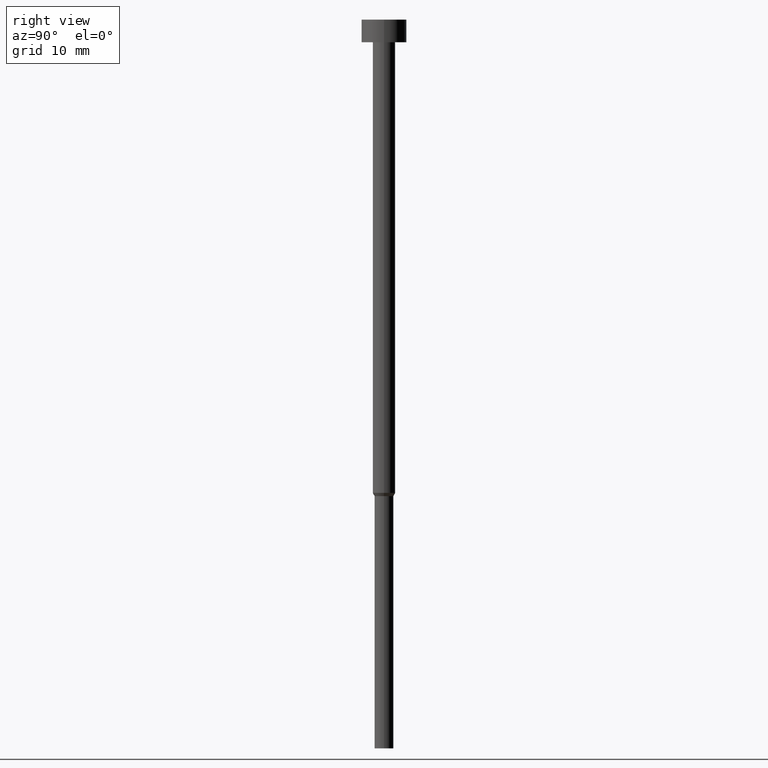
[diagram: clean part render]
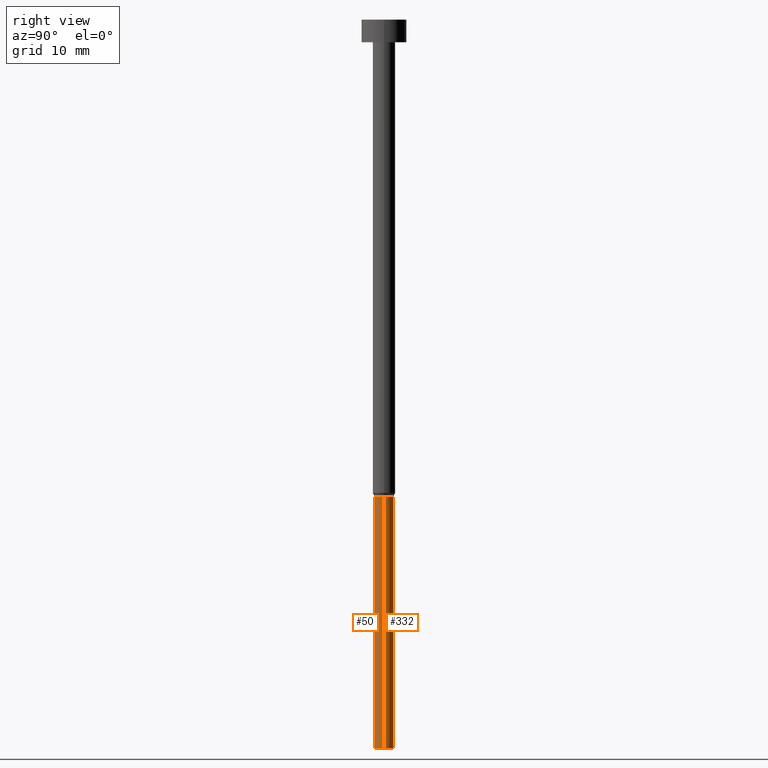
[diagram: same view with one multi-face feature highlighted, each face labeled with its STEP entity id]
A machine part, right view. The highlighted faces form ONE feature: a constant-radius fillet chain: 2 tangent blend faces with common blend radius 1.25 mm. The faces share edges in the B-rep.
Their STEP definitions:
[1] entity #50 (Cylinder):
#1 = CARTESIAN_POINT ( 'NONE',  ( 0.000000000000000000, 0.000000000000000000, -63.43301270189222407 ) ) ;
#12 = AXIS2_PLACEMENT_3D ( 'NONE', #165, #223, #199 ) ;
#20 = DIRECTION ( 'NONE',  ( -0.000000000000000000, -0.000000000000000000, 1.000000000000000000 ) ) ;
#24 = DIRECTION ( 'NONE',  ( -0.000000000000000000, -0.000000000000000000, 1.000000000000000000 ) ) ;
#32 = ORIENTED_EDGE ( 'NONE', *, *, #235, .T. ) ;
#36 = ORIENTED_EDGE ( 'NONE', *, *, #184, .F. ) ;
#39 = CARTESIAN_POINT ( 'NONE',  ( -1.250000000000000000, 1.530808498934191571E-16, -97.00000000000000000 ) ) ;
#47 = CARTESIAN_POINT ( 'NONE',  ( 0.000000000000000000, 0.000000000000000000, -97.00000000000000000 ) ) ;
#50 = ADVANCED_FACE ( 'NONE', ( #109 ), #352, .T. ) ;
#55 = CARTESIAN_POINT ( 'NONE',  ( 1.250000000000000000, 0.000000000000000000, 0.000000000000000000 ) ) ;
#60 = VERTEX_POINT ( 'NONE', #327 ) ;
#71 = VERTEX_POINT ( 'NONE', #279 ) ;
#88 = ORIENTED_EDGE ( 'NONE', *, *, #159, .F. ) ;
#97 = EDGE_LOOP ( 'NONE', ( #36, #124, #32, #88 ) ) ;
#101 = CARTESIAN_POINT ( 'NONE',  ( -1.250000000000000000, 1.530808498934191571E-16, 0.000000000000000000 ) ) ;
#105 = LINE ( 'NONE', #55, #182 ) ;
#109 = FACE_OUTER_BOUND ( 'NONE', #97, .T. ) ;
#114 = DIRECTION ( 'NONE',  ( -0.000000000000000000, -0.000000000000000000, 1.000000000000000000 ) ) ;
#119 = EDGE_CURVE ( 'NONE', #202, #71, #232, .T. ) ;
#124 = ORIENTED_EDGE ( 'NONE', *, *, #119, .T. ) ;
#159 = EDGE_CURVE ( 'NONE', #60, #335, #350, .T. ) ;
#165 = CARTESIAN_POINT ( 'NONE',  ( 0.000000000000000000, 0.000000000000000000, 0.000000000000000000 ) ) ;
#169 = DIRECTION ( 'NONE',  ( 1.000000000000000000, 0.000000000000000000, 0.000000000000000000 ) ) ;
#182 = VECTOR ( 'NONE', #24, 1000.000000000000000 ) ;
#184 = EDGE_CURVE ( 'NONE', #202, #60, #349, .T. ) ;
#199 = DIRECTION ( 'NONE',  ( 1.000000000000000000, 0.000000000000000000, 0.000000000000000000 ) ) ;
#201 = VECTOR ( 'NONE', #300, 1000.000000000000000 ) ;
#202 = VERTEX_POINT ( 'NONE', #39 ) ;
#223 = DIRECTION ( 'NONE',  ( -0.000000000000000000, -0.000000000000000000, 1.000000000000000000 ) ) ;
#227 = DIRECTION ( 'NONE',  ( 1.000000000000000000, 0.000000000000000000, 0.000000000000000000 ) ) ;
#232 = CIRCLE ( 'NONE', #338, 1.250000000000000000 ) ;
#235 = EDGE_CURVE ( 'NONE', #71, #335, #105, .T. ) ;
#247 = AXIS2_PLACEMENT_3D ( 'NONE', #1, #114, #227 ) ;
#279 = CARTESIAN_POINT ( 'NONE',  ( 1.250000000000000000, 0.000000000000000000, -97.00000000000000000 ) ) ;
#291 = CARTESIAN_POINT ( 'NONE',  ( 1.250000000000000000, 0.000000000000000000, -63.43301270189222407 ) ) ;
#300 = DIRECTION ( 'NONE',  ( -0.000000000000000000, -0.000000000000000000, 1.000000000000000000 ) ) ;
#327 = CARTESIAN_POINT ( 'NONE',  ( -1.250000000000000000, 1.530808498934191571E-16, -63.43301270189222407 ) ) ;
#335 = VERTEX_POINT ( 'NONE', #291 ) ;
#338 = AXIS2_PLACEMENT_3D ( 'NONE', #47, #20, #169 ) ;
#349 = LINE ( 'NONE', #101, #201 ) ;
#350 = CIRCLE ( 'NONE', #247, 1.250000000000000000 ) ;
#352 = CYLINDRICAL_SURFACE ( 'NONE', #12, 1.250000000000000000 ) ;
[2] entity #332 (Cylinder):
#9 = DIRECTION ( 'NONE',  ( -0.000000000000000000, -0.000000000000000000, 1.000000000000000000 ) ) ;
#13 = ORIENTED_EDGE ( 'NONE', *, *, #355, .F. ) ;
#23 = CARTESIAN_POINT ( 'NONE',  ( 0.000000000000000000, 0.000000000000000000, 0.000000000000000000 ) ) ;
#24 = DIRECTION ( 'NONE',  ( -0.000000000000000000, -0.000000000000000000, 1.000000000000000000 ) ) ;
#39 = CARTESIAN_POINT ( 'NONE',  ( -1.250000000000000000, 1.530808498934191571E-16, -97.00000000000000000 ) ) ;
#42 = CARTESIAN_POINT ( 'NONE',  ( 0.000000000000000000, 0.000000000000000000, -97.00000000000000000 ) ) ;
#44 = CIRCLE ( 'NONE', #228, 1.250000000000000000 ) ;
#55 = CARTESIAN_POINT ( 'NONE',  ( 1.250000000000000000, 0.000000000000000000, 0.000000000000000000 ) ) ;
#60 = VERTEX_POINT ( 'NONE', #327 ) ;
#71 = VERTEX_POINT ( 'NONE', #279 ) ;
#73 = DIRECTION ( 'NONE',  ( 1.000000000000000000, 0.000000000000000000, 0.000000000000000000 ) ) ;
#83 = CARTESIAN_POINT ( 'NONE',  ( 0.000000000000000000, 0.000000000000000000, -63.43301270189222407 ) ) ;
#101 = CARTESIAN_POINT ( 'NONE',  ( -1.250000000000000000, 1.530808498934191571E-16, 0.000000000000000000 ) ) ;
#105 = LINE ( 'NONE', #55, #182 ) ;
#110 = CYLINDRICAL_SURFACE ( 'NONE', #255, 1.250000000000000000 ) ;
#111 = EDGE_LOOP ( 'NONE', ( #126, #157, #13, #269 ) ) ;
#126 = ORIENTED_EDGE ( 'NONE', *, *, #192, .T. ) ;
#144 = DIRECTION ( 'NONE',  ( -0.000000000000000000, -0.000000000000000000, 1.000000000000000000 ) ) ;
#157 = ORIENTED_EDGE ( 'NONE', *, *, #184, .T. ) ;
#164 = DIRECTION ( 'NONE',  ( 1.000000000000000000, 0.000000000000000000, 0.000000000000000000 ) ) ;
#182 = VECTOR ( 'NONE', #24, 1000.000000000000000 ) ;
#184 = EDGE_CURVE ( 'NONE', #202, #60, #349, .T. ) ;
#192 = EDGE_CURVE ( 'NONE', #71, #202, #265, .T. ) ;
#201 = VECTOR ( 'NONE', #300, 1000.000000000000000 ) ;
#202 = VERTEX_POINT ( 'NONE', #39 ) ;
#210 = AXIS2_PLACEMENT_3D ( 'NONE', #42, #343, #164 ) ;
#225 = FACE_OUTER_BOUND ( 'NONE', #111, .T. ) ;
#228 = AXIS2_PLACEMENT_3D ( 'NONE', #83, #144, #73 ) ;
#235 = EDGE_CURVE ( 'NONE', #71, #335, #105, .T. ) ;
#255 = AXIS2_PLACEMENT_3D ( 'NONE', #23, #9, #317 ) ;
#265 = CIRCLE ( 'NONE', #210, 1.250000000000000000 ) ;
#269 = ORIENTED_EDGE ( 'NONE', *, *, #235, .F. ) ;
#279 = CARTESIAN_POINT ( 'NONE',  ( 1.250000000000000000, 0.000000000000000000, -97.00000000000000000 ) ) ;
#291 = CARTESIAN_POINT ( 'NONE',  ( 1.250000000000000000, 0.000000000000000000, -63.43301270189222407 ) ) ;
#300 = DIRECTION ( 'NONE',  ( -0.000000000000000000, -0.000000000000000000, 1.000000000000000000 ) ) ;
#317 = DIRECTION ( 'NONE',  ( 1.000000000000000000, 0.000000000000000000, 0.000000000000000000 ) ) ;
#327 = CARTESIAN_POINT ( 'NONE',  ( -1.250000000000000000, 1.530808498934191571E-16, -63.43301270189222407 ) ) ;
#332 = ADVANCED_FACE ( 'NONE', ( #225 ), #110, .T. ) ;
#335 = VERTEX_POINT ( 'NONE', #291 ) ;
#343 = DIRECTION ( 'NONE',  ( -0.000000000000000000, -0.000000000000000000, 1.000000000000000000 ) ) ;
#349 = LINE ( 'NONE', #101, #201 ) ;
#355 = EDGE_CURVE ( 'NONE', #335, #60, #44, .T. ) ;